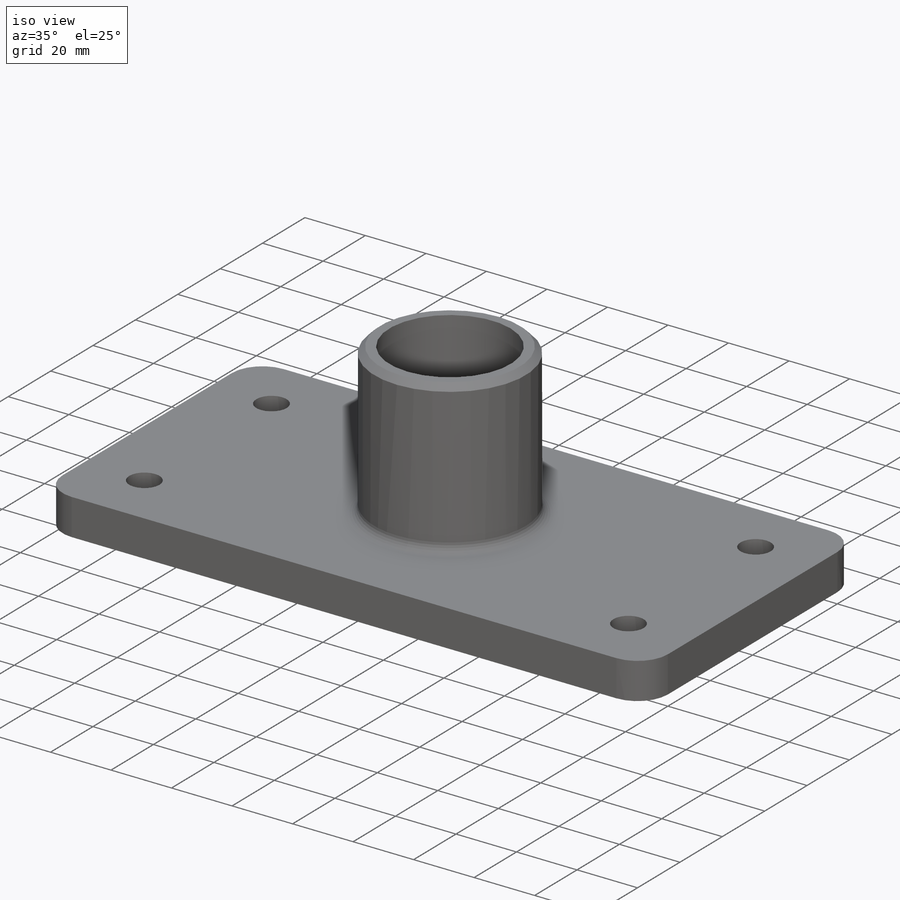
[diagram: iso view]
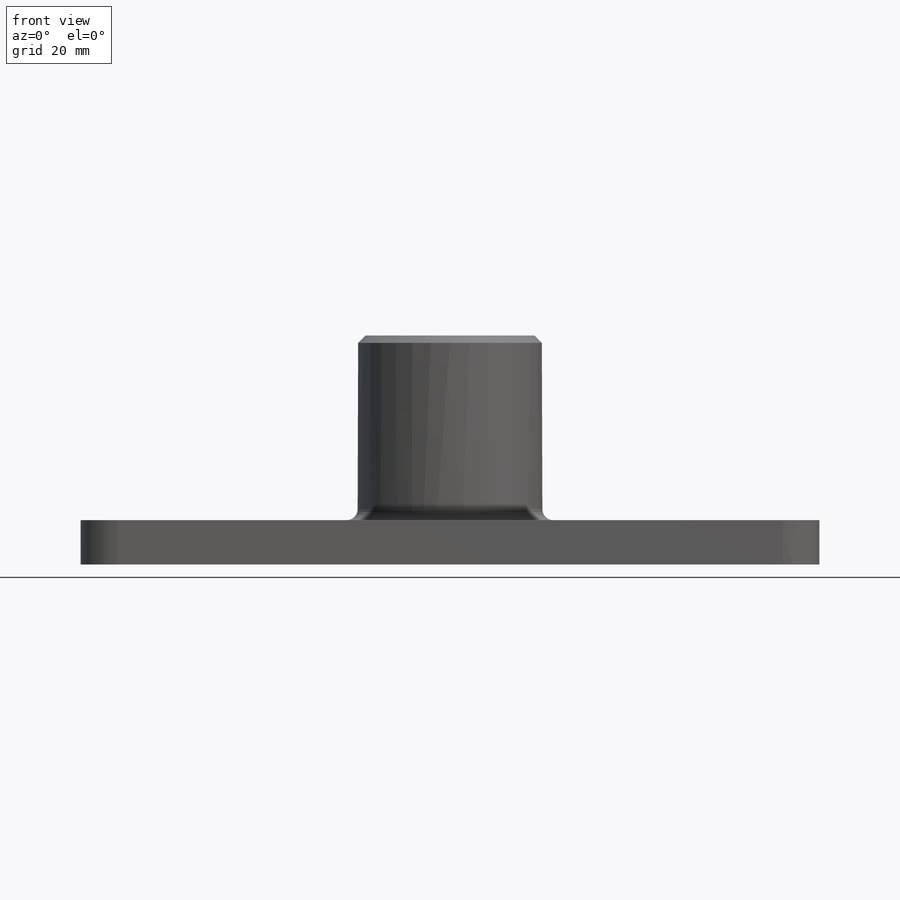
[diagram: front view]
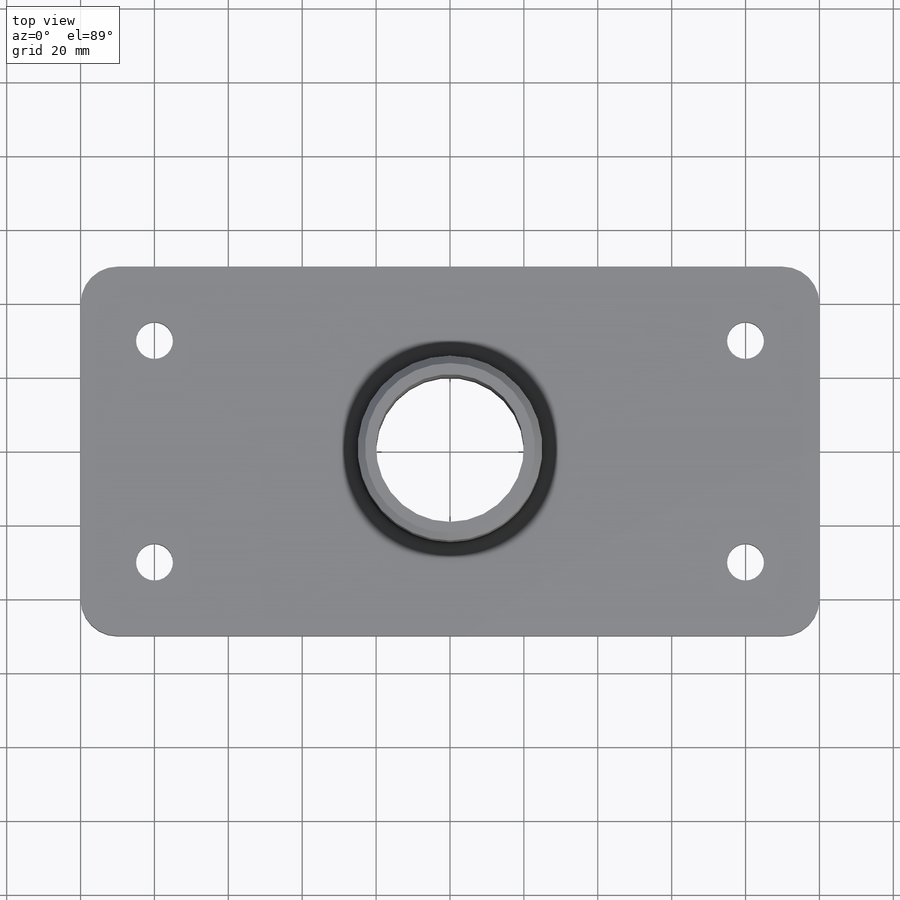
[diagram: top view]
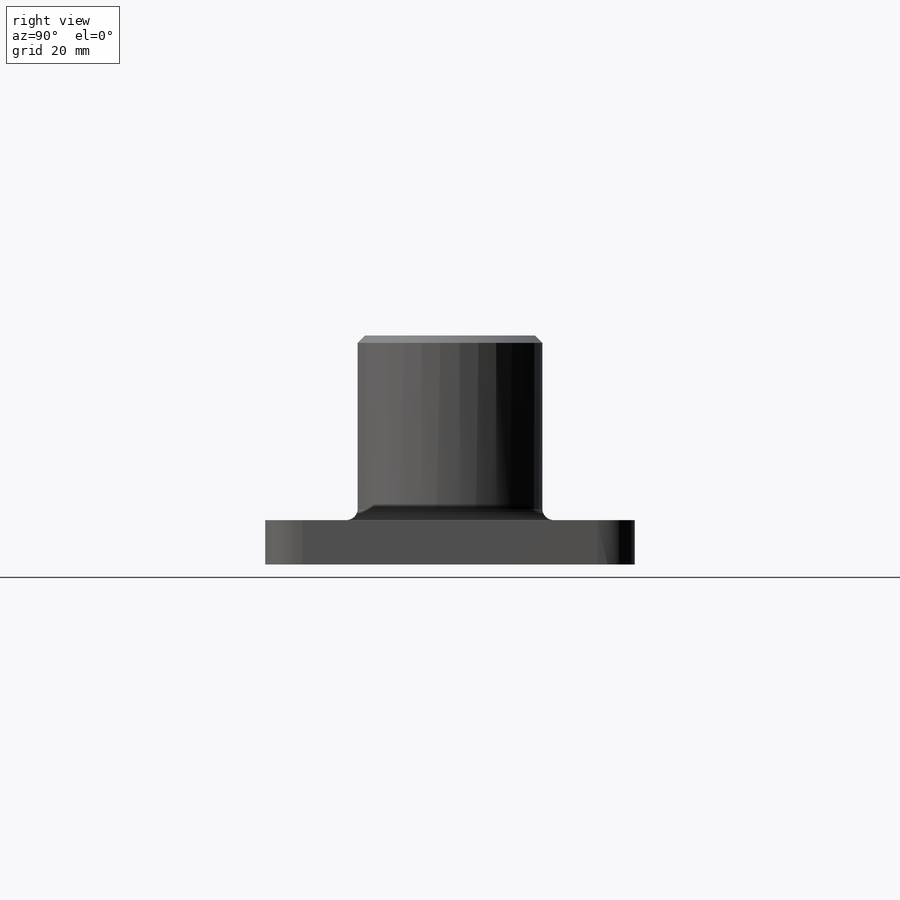
[diagram: right view]
SOLIDWORKS PART (.sldprt)
format: sldprt  version: not decoded by parser v0  size: 187,392 bytes
history: native  units: mm
features: sketch x3, extrude x2, material x1, cut_extrude x1, fillet x1, chamfer x1 (+13 scaffold rows collapsed)
feature tree (22):
  scaffold x13  (default folders/planes/origin — collapsed)
  material  "Material <not specified>"
  sketch  "Sketch1"  dims[c1.D3=10.0mm c1.D4=10.0mm c1.D1=100.0mm c1.D2=200.0mm c1.D5=60.0mm c1.D6=20.0mm c2.D5=20.0mm c2.D6=60.0mm c2.D7=20.0mm c2.D8=110.0mm c3.D7=20.0mm c3.D8=160.0mm]
  extrude  "Boss-Extrude1"  Depth=12mm
  sketch  "Sketch2"  dims[D1=50.0mm]
  extrude  "Boss-Extrude2"  Depth=50mm
  sketch  "Sketch3"  dims[D1=40.0mm]
  cut_extrude  "Cut-Extrude1"  [1 undecoded]
  fillet  "Fillet1"  Radius=3mm
  chamfer  "Chamfer1"  Distance=2mm Angle=45deg
decode coverage: 7 of 8 modeling features carry decoded parameters
note: 1 parameter value undecoded
note: suppression state not decoded; provenance and decode notes live in map.json
